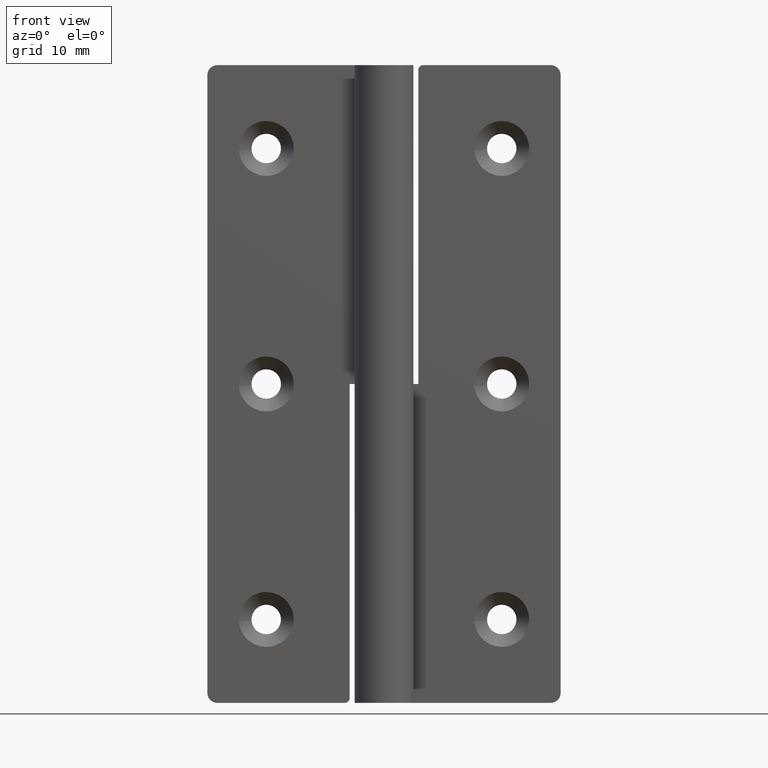
[diagram: clean part render]
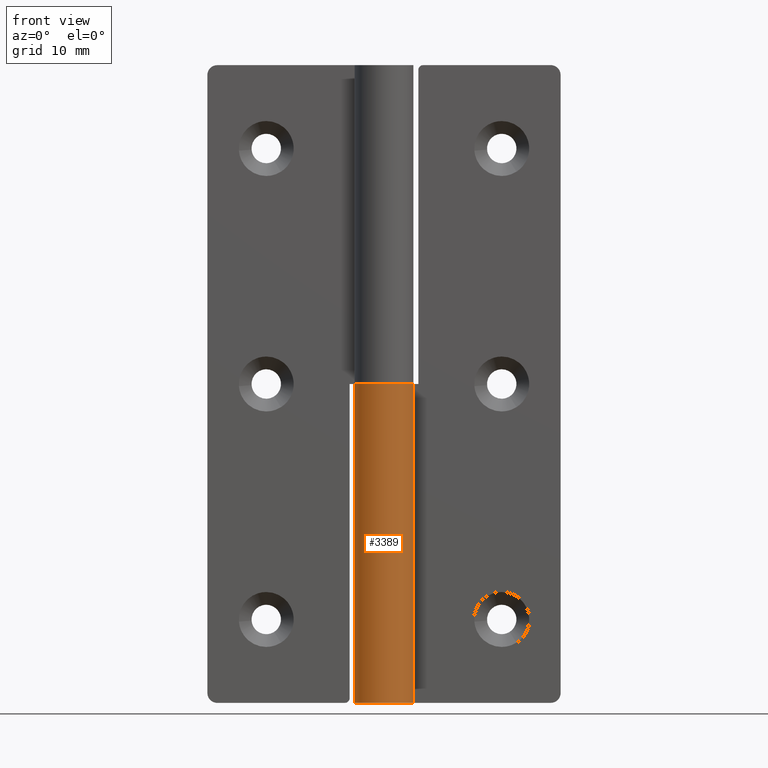
[diagram: same view with one face highlighted and labeled with its STEP entity id]
A machine part, front view. The second image highlights one B-rep face of the part: STEP entity #3389.
In plain terms, the highlighted face is a freeform B-spline surface patch.
Its self-contained STEP definition (entity closure, byte-faithful):
#3061=CARTESIAN_POINT('',(0.0,3.0,32.500000000000000));
#3062=VERTEX_POINT('',#3061);
#3068=CARTESIAN_POINT('',(2.626308930482595,1.450000483333500,32.500000000000000));
#3069=VERTEX_POINT('',#3068);
#3070=CARTESIAN_POINT('',(0.0,3.0,32.500000000000000));
#3071=CARTESIAN_POINT('',(-2.290598151671515,3.000000000000000,32.500000000000007));
#3072=CARTESIAN_POINT('',(-2.894028924404727,0.790314231624877,32.500000000000000));
#3073=CARTESIAN_POINT('',(-3.497459697137940,-1.419371536750246,32.500000000000007));
#3074=CARTESIAN_POINT('',(-1.524794830460727,-2.583602276860787,32.500000000000000));
#3075=CARTESIAN_POINT('',(0.447870036216486,-3.747833016971329,32.500000000000007));
#3076=CARTESIAN_POINT('',(2.090650887857293,-2.151552663799218,32.500000000000000));
#3077=CARTESIAN_POINT('',(3.733431739498098,-0.555272310627109,32.500000000000007));
#3078=CARTESIAN_POINT('',(2.626308930482593,1.450000483333498,32.500000000000000));
#3086=(BOUNDED_CURVE()B_SPLINE_CURVE(2,(#3070,#3071,#3072,#3073,#3074,#3075,#3076,#3077,#3078),.UNSPECIFIED.,.F.,.U.)B_SPLINE_CURVE_WITH_KNOTS((3,2,2,2,3),(0.0,0.250000000000000,0.500000000000000,0.750000000000000,1.0),.UNSPECIFIED.)CURVE()GEOMETRIC_REPRESENTATION_ITEM()RATIONAL_B_SPLINE_CURVE((1.0,0.794807548154990,1.0,0.794807548154990,1.0,0.794807548154990,1.0,0.794807548154990,1.0))REPRESENTATION_ITEM(''));
#3087=EDGE_CURVE('',#3062,#3069,#3086,.T.);
#3281=CARTESIAN_POINT('',(2.626308930482595,1.450000483333500,0.0));
#3282=VERTEX_POINT('',#3281);
#3288=CARTESIAN_POINT('',(-0.000000157079587,3.0,0.0));
#3289=VERTEX_POINT('',#3288);
#3290=CARTESIAN_POINT('',(2.626308930482593,1.450000483333499,0.0));
#3291=CARTESIAN_POINT('',(3.733431724475235,-0.555272283416994,0.0));
#3292=CARTESIAN_POINT('',(2.090650916021045,-2.151552636432669,0.0));
#3293=CARTESIAN_POINT('',(0.447870107566852,-3.747832989448346,0.0));
#3294=CARTESIAN_POINT('',(-1.524794762822195,-2.583602316779811,0.0));
#3295=CARTESIAN_POINT('',(-3.497459633211241,-1.419371644111277,0.0));
#3296=CARTESIAN_POINT('',(-2.894028955440283,0.790314117976658,0.0));
#3297=CARTESIAN_POINT('',(-2.290598277669325,2.999999880064593,0.0));
#3298=CARTESIAN_POINT('',(-0.000000157079588,2.999999999999996,0.0));
#3306=(BOUNDED_CURVE()B_SPLINE_CURVE(2,(#3290,#3291,#3292,#3293,#3294,#3295,#3296,#3297,#3298),.UNSPECIFIED.,.F.,.U.)B_SPLINE_CURVE_WITH_KNOTS((3,2,2,2,3),(0.0,0.250000000000000,0.500000000000000,0.750000000000000,1.0),.UNSPECIFIED.)CURVE()GEOMETRIC_REPRESENTATION_ITEM()RATIONAL_B_SPLINE_CURVE((1.0,0.794807552126888,1.0,0.794807552126888,1.0,0.794807552126888,1.0,0.794807552126888,1.0))REPRESENTATION_ITEM(''));
#3307=EDGE_CURVE('',#3282,#3289,#3306,.T.);
#3348=CARTESIAN_POINT('',(2.626308930482595,1.450000483333500,0.0));
#3349=CARTESIAN_POINT('',(2.626308930482595,1.450000483333500,32.500000000000000));
#3350=QUASI_UNIFORM_CURVE('',1,(#3348,#3349),.UNSPECIFIED.,.F.,.U.);
#3351=EDGE_CURVE('',#3282,#3069,#3350,.T.);
#3357=CARTESIAN_POINT('',(2.584887401600657,1.522615224226463,-0.812500000000001));
#3358=CARTESIAN_POINT('',(2.584887401600657,1.522615224226463,33.332812500000003));
#3359=CARTESIAN_POINT('',(4.454017240374520,-1.650537188364825,-0.812500000000001));
#3360=CARTESIAN_POINT('',(4.454017240374520,-1.650537188364825,33.332812499999996));
#3361=CARTESIAN_POINT('',(0.968449285300284,-2.839384789316405,-0.812500000000001));
#3362=CARTESIAN_POINT('',(0.968449285300284,-2.839384789316405,33.332812500000003));
#3363=CARTESIAN_POINT('',(-2.517118669773953,-4.028232390267985,-0.812500000000001));
#3364=CARTESIAN_POINT('',(-2.517118669773953,-4.028232390267985,33.332812499999996));
#3365=CARTESIAN_POINT('',(-2.976562328400898,-0.374268226202305,-0.812500000000001));
#3366=CARTESIAN_POINT('',(-2.976562328400898,-0.374268226202305,33.332812500000003));
#3367=CARTESIAN_POINT('',(-3.436005987027845,3.279695937863376,-0.812500000000001));
#3368=CARTESIAN_POINT('',(-3.436005987027845,3.279695937863376,33.332812499999996));
#3369=CARTESIAN_POINT('',(0.235377130588173,2.990752013523702,-0.812500000000001));
#3370=CARTESIAN_POINT('',(0.235377130588173,2.990752013523702,33.332812500000003));
#3378=(BOUNDED_SURFACE()B_SPLINE_SURFACE(1,2,((#3357,#3359,#3361,#3363,#3365,#3367,#3369),(#3358,#3360,#3362,#3364,#3366,#3368,#3370)),.UNSPECIFIED.,.F.,.F.,.U.)B_SPLINE_SURFACE_WITH_KNOTS((2,2),(3,2,2,3),(0.0,34.145312500000003),(0.0,5.702297214197750,11.404594428395500,17.106891642593251),.UNSPECIFIED.)GEOMETRIC_REPRESENTATION_ITEM()RATIONAL_B_SPLINE_SURFACE(((1.0,0.631578351302498,1.0,0.631578351302498,1.0,0.631578351302498,1.0),(1.0,0.631578351302498,1.0,0.631578351302498,1.0,0.631578351302498,1.0)))REPRESENTATION_ITEM('')SURFACE());
#3379=ORIENTED_EDGE('',*,*,#3087,.F.);
#3380=CARTESIAN_POINT('',(-0.000000157079587,3.0,0.0));
#3381=CARTESIAN_POINT('',(0.0,3.0,32.500000000000000));
#3382=QUASI_UNIFORM_CURVE('',1,(#3380,#3381),.UNSPECIFIED.,.F.,.U.);
#3383=EDGE_CURVE('',#3289,#3062,#3382,.T.);
#3384=ORIENTED_EDGE('',*,*,#3383,.F.);
#3385=ORIENTED_EDGE('',*,*,#3307,.F.);
#3386=ORIENTED_EDGE('',*,*,#3351,.T.);
#3387=EDGE_LOOP('',(#3379,#3384,#3385,#3386));
#3388=FACE_OUTER_BOUND('',#3387,.T.);
#3389=ADVANCED_FACE('',(#3388),#3378,.T.);